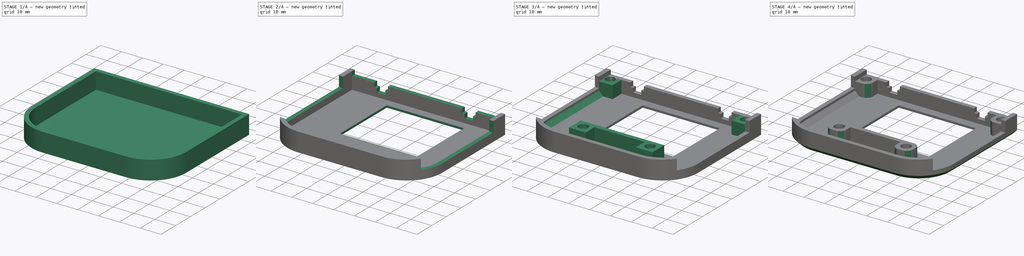
[diagram: build sequence overview — one tinted view per stage of 4, left to right]
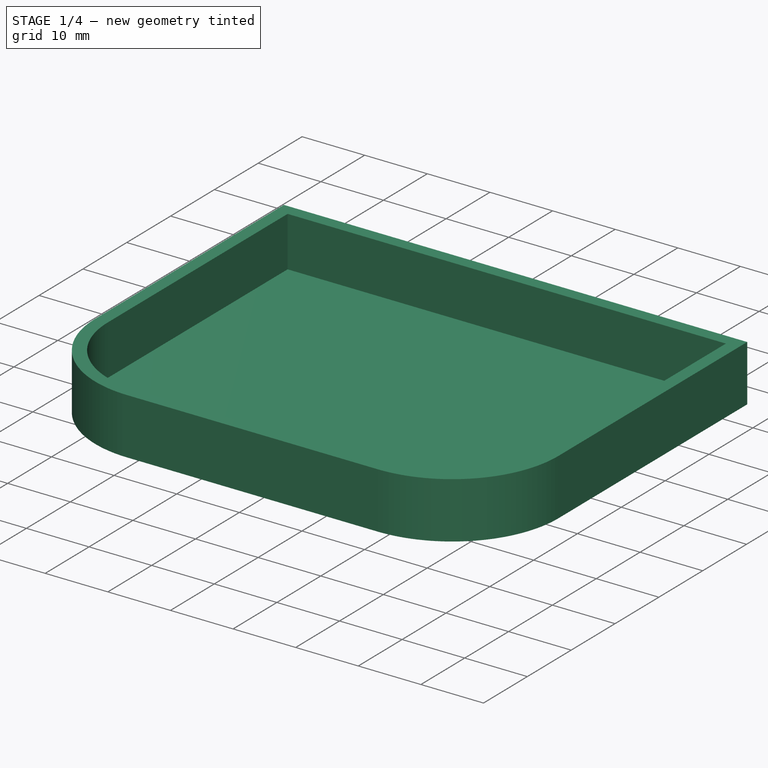
[diagram: stage 1 of 4 — iso view after this stage's code; geometry added in this stage tinted green]
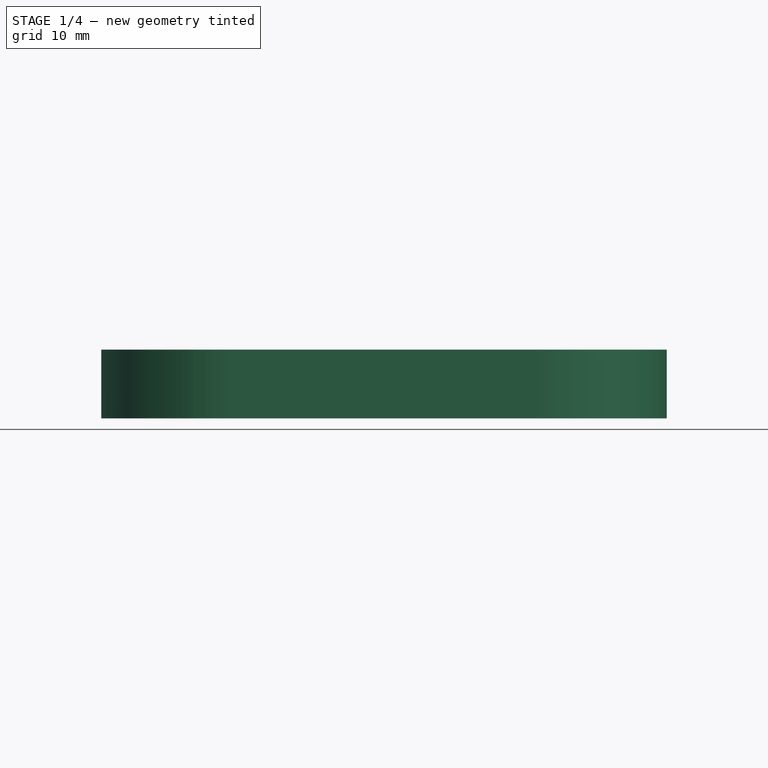
[diagram: stage 1 of 4 — front view after this stage's code; geometry added in this stage tinted green]
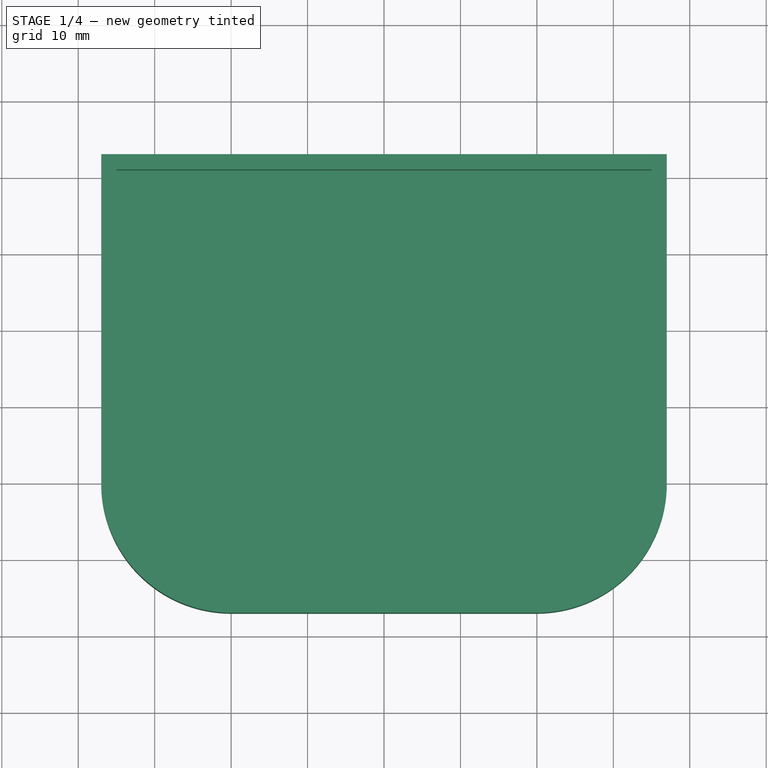
[diagram: stage 1 of 4 — top view after this stage's code; geometry added in this stage tinted green]
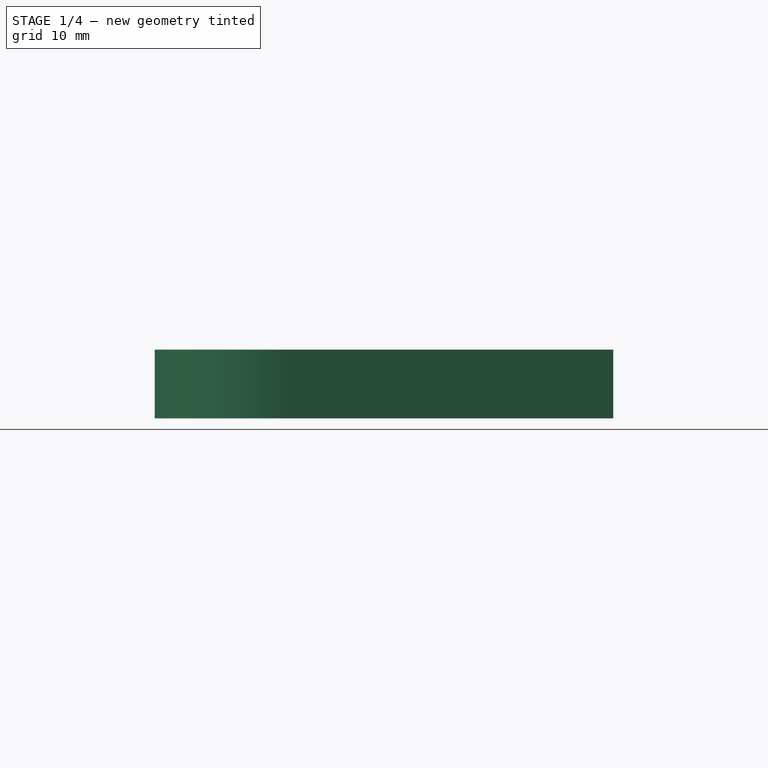
[diagram: stage 1 of 4 — right view after this stage's code; geometry added in this stage tinted green]
FCSTD DOCUMENT  (FreeCAD 0.21R33771 (Git))
Label: face
License: All rights reserved
LicenseURL: http://en.wikipedia.org/wiki/All_rights_reserved
objects: Sketcher::SketchObject×7, PartDesign::Pocket×5, PartDesign::Pad×2, PartDesign::Chamfer×2, PartDesign::Fillet×1, PartDesign::Body×1
note: 28 computed .brp shape members not serialized (recipe doc carries the construction recipe); baked Part::Feature solids carry a one-line shape summary decoded from their .brp

FEATURE [Sketcher::SketchObject] Sketch
  FullyConstrained = true
  MapMode = 5
  Support = -> [XY_Plane]
  sketch-geometry (6):
    g0: LineSegment StartX=-37 StartY=23 StartZ=0 EndX=-37 EndY=-20 EndZ=0
    g1: LineSegment StartX=-20 StartY=-37 StartZ=0 EndX=20 EndY=-37 EndZ=0
    g2: LineSegment StartX=37 StartY=-20 StartZ=0 EndX=37 EndY=23 EndZ=0
    g3: ArcOfCircle CenterX=-20 CenterY=-20 CenterZ=0 NormalX=0 NormalY=0 NormalZ=1 AngleXU=0 Radius=17 StartAngle=3.14159 EndAngle=4.71239
    g4: ArcOfCircle CenterX=20 CenterY=-20 CenterZ=0 NormalX=0 NormalY=0 NormalZ=1 AngleXU=0 Radius=17 StartAngle=4.71239 EndAngle=6.28319
    g5: LineSegment StartX=-37 StartY=23 StartZ=0 EndX=37 EndY=23 EndZ=0
  constraints (18):
    c: Vertical(g0)
    c: Horizontal(g1)
    c: Vertical(g2)
    c: Coincident(g3,g0)
    c: Coincident(g3,g1)
    c: Coincident(g4,g2)
    c: Coincident(g4,g1)
    c: Symmetric(g2,g0,g-2)
    c: Vertical(g1,g3)
    c: Horizontal(g3,g0)
    c: Symmetric(g4,g3,g-2)
    c: Horizontal(g4,g2)
    c: Radius(g3) = 17
    c: DistanceX(g0,g2) = 74
    c: DistanceY(g1,g-1) = 37
    c: DistanceY(g-1,g2) = 23
    c: Coincident(g5,g0)
    c: Coincident(g5,g2)
FEATURE [PartDesign::Pad] Pad
  Direction = (0,0,1)
  Length = 9
  Length2 = 10
  Profile = -> Sketch
  ReferenceAxis = -> Sketch [N_Axis]
  Type = 0
FEATURE [Sketcher::SketchObject] Sketch001
  FullyConstrained = true
  MapMode = 5
  Placement = pos=(0,0,9) rot=(0,0,1;0rad)
  Support = -> [Pad]
  sketch-geometry (6):
    g0: LineSegment StartX=-35 StartY=21 StartZ=0 EndX=-35 EndY=-20 EndZ=0
    g1: LineSegment StartX=35 StartY=21 StartZ=0 EndX=35 EndY=-20 EndZ=0
    g2: LineSegment StartX=-20 StartY=-35 StartZ=0 EndX=20 EndY=-35 EndZ=0
    g3: ArcOfCircle CenterX=-20 CenterY=-20 CenterZ=0 NormalX=0 NormalY=0 NormalZ=1 AngleXU=0 Radius=15 StartAngle=3.14159 EndAngle=4.71239
    g4: ArcOfCircle CenterX=20 CenterY=-20 CenterZ=0 NormalX=0 NormalY=0 NormalZ=1 AngleXU=0 Radius=15 StartAngle=4.71239 EndAngle=6.28319
    g5: LineSegment StartX=-35 StartY=21 StartZ=0 EndX=35 EndY=21 EndZ=0
  constraints (18):
    c: Vertical(g0)
    c: Vertical(g1)
    c: Horizontal(g2)
    c: Coincident(g3,g0)
    c: Coincident(g3,g2)
    c: Coincident(g4,g1)
    c: Coincident(g4,g2)
    c: DistanceY(g2,g-1) = 35
    c: DistanceX(g0,g1) = 70
    c: Symmetric(g1,g0,g-2)
    c: Coincident(g5,g0)
    c: Coincident(g5,g1)
    c: Symmetric(g4,g3,g-2)
    c: Horizontal(g0,g3)
    c: Horizontal(g4,g1)
    c: Vertical(g2,g3)
    c: Radius(g3) = 15
    c: DistanceY(g-1,g1) = 21
FEATURE [PartDesign::Pocket] Pocket
  BaseFeature = -> Pad
  Direction = (0,0,-1)
  Length = 8
  Length2 = 5
  Profile = -> Sketch001
  ReferenceAxis = -> Sketch001 [N_Axis]
  Type = 0
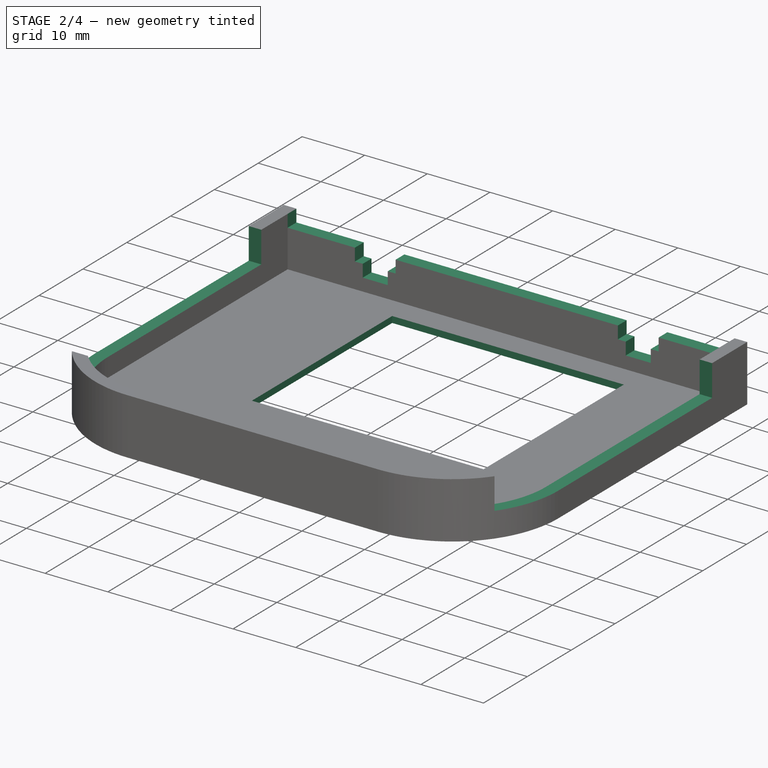
[diagram: stage 2 of 4 — iso view after this stage's code; geometry added in this stage tinted green]
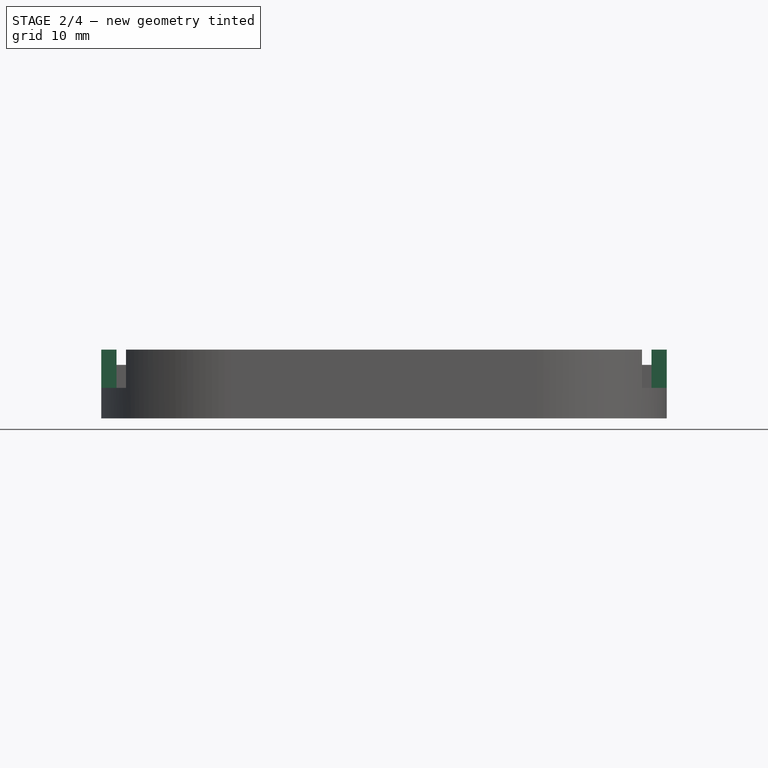
[diagram: stage 2 of 4 — front view after this stage's code; geometry added in this stage tinted green]
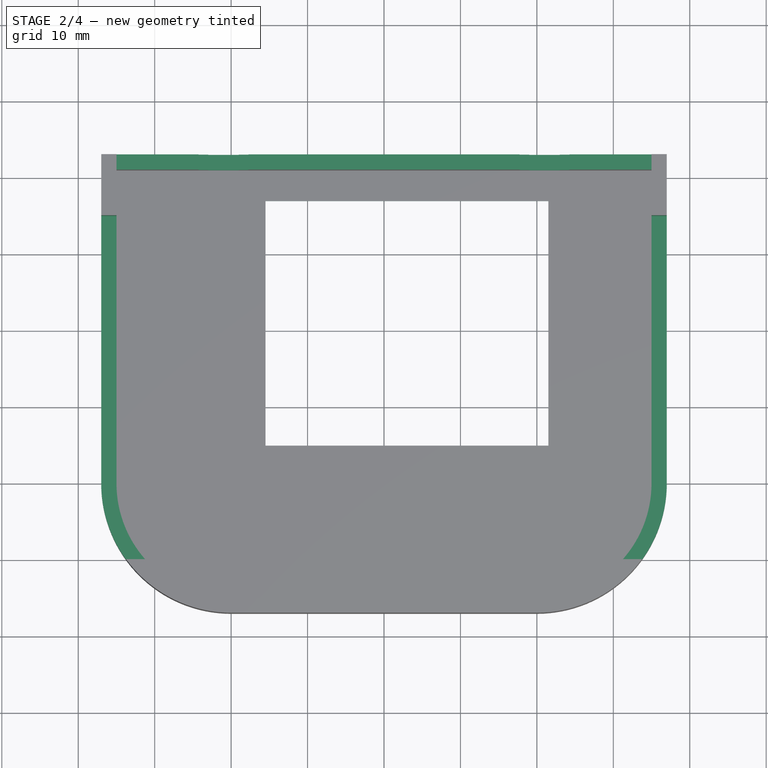
[diagram: stage 2 of 4 — top view after this stage's code; geometry added in this stage tinted green]
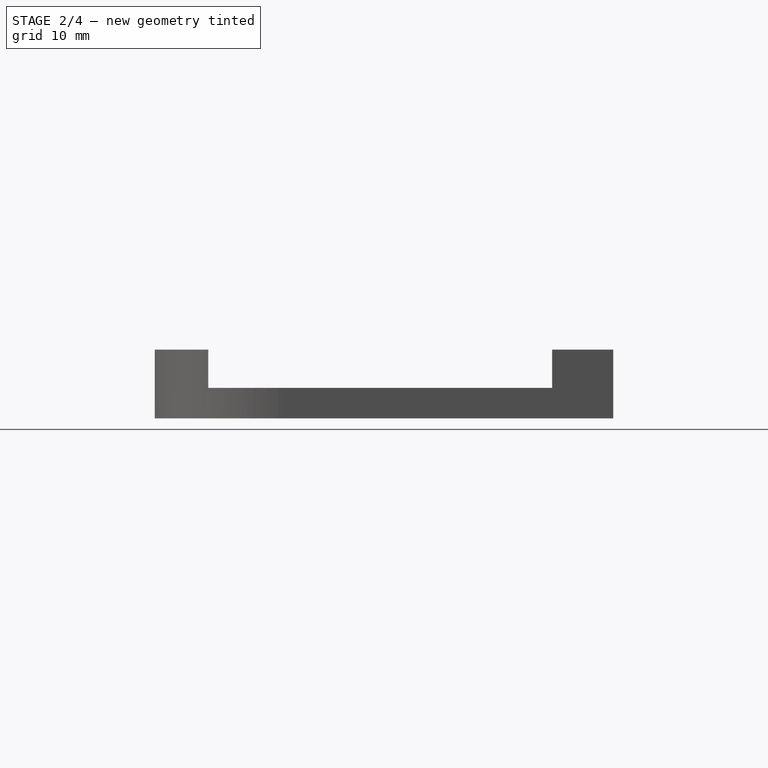
[diagram: stage 2 of 4 — right view after this stage's code; geometry added in this stage tinted green]
FEATURE [Sketcher::SketchObject] Sketch002
  FullyConstrained = true
  MapMode = 5
  Placement = pos=(0,0,1) rot=(0,0,1;0rad)
  Support = -> [Pocket]
  sketch-geometry (4):
    g0: LineSegment StartX=-15.5 StartY=17 StartZ=0 EndX=21.5 EndY=17 EndZ=0
    g1: LineSegment StartX=21.5 StartY=17 StartZ=0 EndX=21.5 EndY=-15 EndZ=0
    g2: LineSegment StartX=21.5 StartY=-15 StartZ=0 EndX=-15.5 EndY=-15 EndZ=0
    g3: LineSegment StartX=-15.5 StartY=-15 StartZ=0 EndX=-15.5 EndY=17 EndZ=0
  constraints (12):
    c: Coincident(g0,g1)
    c: Coincident(g1,g2)
    c: Coincident(g2,g3)
    c: Coincident(g3,g0)
    c: Horizontal(g2)
    c: Vertical(g3)
    c: DistanceY(g3,g3) = 32
    c: DistanceX(g2,g2) = 37
    c: DistanceX(g-1,g1) = 21.5
    c: Horizontal(g0)
    c: DistanceY(g1,g-1) = 15
    c: Vertical(g1)
FEATURE [PartDesign::Pocket] Pocket001
  BaseFeature = -> Pocket
  Direction = (0,0,-1)
  Length = 5
  Length2 = 5
  Profile = -> Sketch002
  ReferenceAxis = -> Sketch002 [N_Axis]
  Type = 1
FEATURE [Sketcher::SketchObject] Sketch003
  FullyConstrained = true
  MapMode = 5
  Placement = pos=(0,23,0) rot=(0,0.707107,0.707107;3.14159rad)
  Support = -> [Pocket001]
  sketch-geometry (20):
    g0: LineSegment StartX=-35 StartY=9 StartZ=0 EndX=35 EndY=9 EndZ=0
    g1: LineSegment StartX=35 StartY=9 StartZ=0 EndX=35 EndY=7 EndZ=0
    g2: LineSegment StartX=35 StartY=7 StartZ=0 EndX=24.25 EndY=7 EndZ=0
    g3: LineSegment StartX=24.25 StartY=7 StartZ=0 EndX=24.25 EndY=5 EndZ=0
    g4: LineSegment StartX=17.75 StartY=5 StartZ=0 EndX=17.75 EndY=7 EndZ=0
    g5: LineSegment StartX=17.75 StartY=7 StartZ=0 EndX=-17.75 EndY=7 EndZ=0
    g6: LineSegment StartX=-17.75 StartY=7 StartZ=0 EndX=-17.75 EndY=5 EndZ=0
    g7: LineSegment StartX=-24.25 StartY=5 StartZ=0 EndX=-24.25 EndY=7 EndZ=0
    g8: LineSegment StartX=-24.25 StartY=7 StartZ=0 EndX=-35 EndY=7 EndZ=0
    g9: LineSegment StartX=-35 StartY=7 StartZ=0 EndX=-35 EndY=9 EndZ=0
    g10: LineSegment StartX=-24.25 StartY=5 StartZ=0 EndX=-23 EndY=5 EndZ=0
    g11: LineSegment StartX=-17.75 StartY=5 StartZ=0 EndX=-19 EndY=5 EndZ=0
    g12: LineSegment StartX=-23 StartY=5 StartZ=0 EndX=-23 EndY=3 EndZ=0
    g13: LineSegment StartX=-19 StartY=5 StartZ=0 EndX=-19 EndY=3 EndZ=0
    g14: LineSegment StartX=-23 StartY=3 StartZ=0 EndX=-19 EndY=3 EndZ=0
    g15: LineSegment StartX=17.75 StartY=5 StartZ=0 EndX=19 EndY=5 EndZ=0
    g16: LineSegment StartX=24.25 StartY=5 StartZ=0 EndX=23 EndY=5 EndZ=0
    g17: LineSegment StartX=19 StartY=5 StartZ=0 EndX=19 EndY=3 EndZ=0
    g18: LineSegment StartX=19 StartY=3 StartZ=0 EndX=23 EndY=3 EndZ=0
    g19: LineSegment StartX=23 StartY=3 StartZ=0 EndX=23 EndY=5 EndZ=0
  constraints (58):
    c: Coincident(g1,g0)
    c: Vertical(g1)
    c: Coincident(g2,g1)
    c: Horizontal(g2)
    c: Coincident(g3,g2)
    c: Vertical(g3)
    c: Vertical(g4)
    c: Coincident(g5,g4)
    c: Horizontal(g5)
    c: Coincident(g6,g5)
    c: Vertical(g6)
    c: Vertical(g7)
    c: Coincident(g8,g7)
    c: Horizontal(g8)
    c: Coincident(g9,g8)
    c: Coincident(g9,g0)
    c: Vertical(g9)
    c: DistanceX(g0,g0) = 70
    c: Symmetric(g0,g0,g-2)
    c: DistanceY(g9,g9) = 2
    c: DistanceY(g-1,g0) = 9
    c: Symmetric(g7,g2,g-2)
    c: Horizontal(g4,g2)
    c: DistanceX(g7,g6) = 6.5
    c: DistanceX(g5,g5) = 35.5
    c: DistanceY(g7,g7) = 2
    c: Horizontal(g6,g4)
    c: Coincident(g10,g7)
    c: Horizontal(g10)
    c: Coincident(g11,g6)
    c: Horizontal(g11)
    c: Coincident(g12,g10)
    c: Vertical(g12)
    c: Coincident(g13,g11)
    c: Vertical(g13)
    c: Coincident(g14,g12)
    c: Coincident(g14,g13)
    c: Horizontal(g14)
    c: Coincident(g15,g4)
    c: Horizontal(g15)
    c: Coincident(g16,g3)
    c: Horizontal(g16)
    c: Coincident(g17,g15)
    c: Vertical(g17)
    c: Coincident(g18,g17)
    c: Horizontal(g18)
    c: Coincident(g19,g18)
    c: Coincident(g19,g16)
    c: Vertical(g19)
    c: DistanceX(g18,g18) = 4
    c: Equal(g18,g14)
    c: DistanceY(g17,g17) = 2
    c: Horizontal(g13,g17)
    c: Horizontal(g11,g10)
    c: Horizontal(g16,g15)
    c: Equal(g15,g16)
    c: Equal(g11,g10)
    c: DistanceX(g4,g2) = 6.5
FEATURE [PartDesign::Pocket] Pocket002
  BaseFeature = -> Pocket001
  Direction = (0,-1,2e-16)
  Length = 5
  Length2 = 5
  Profile = -> Sketch003
  ReferenceAxis = -> Sketch003 [N_Axis]
  Type = 0
FEATURE [Sketcher::SketchObject] Sketch004
  FullyConstrained = true
  MapMode = 5
  Placement = pos=(37,0,0) rot=(0.57735,0.57735,0.57735;2.0944rad)
  sketch-geometry (4):
    g0: LineSegment StartX=-30 StartY=9 StartZ=0 EndX=15 EndY=9 EndZ=0
    g1: LineSegment StartX=15 StartY=9 StartZ=0 EndX=15 EndY=4 EndZ=0
    g2: LineSegment StartX=15 StartY=4 StartZ=0 EndX=-30 EndY=4 EndZ=0
    g3: LineSegment StartX=-30 StartY=4 StartZ=0 EndX=-30 EndY=9 EndZ=0
  constraints (12):
    c: Coincident(g0,g1)
    c: Coincident(g1,g2)
    c: Coincident(g2,g3)
    c: Coincident(g3,g0)
    c: Horizontal(g0)
    c: Horizontal(g2)
    c: Vertical(g1)
    c: Vertical(g3)
    c: DistanceY(g-1,g0) = 9
    c: DistanceY(g1,g1) = 5
    c: DistanceX(g-1,g0) = 15
    c: DistanceX(g0,g-1) = 30
FEATURE [PartDesign::Pocket] Pocket003
  BaseFeature = -> Pocket002
  Direction = (-1,0,0)
  Length = 5
  Length2 = 5
  Profile = -> Sketch004
  ReferenceAxis = -> Sketch004 [N_Axis]
  Type = 1
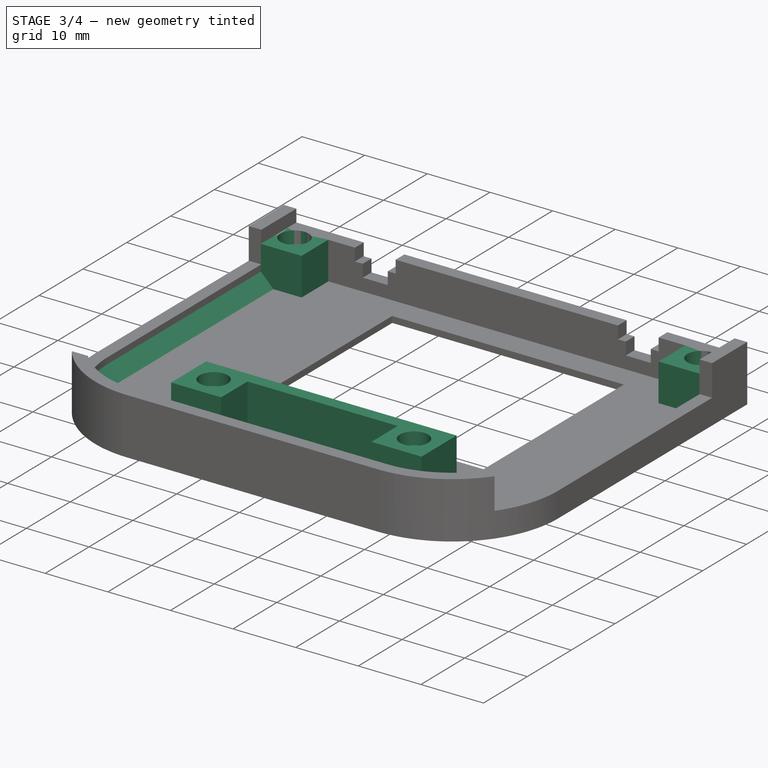
[diagram: stage 3 of 4 — iso view after this stage's code; geometry added in this stage tinted green]
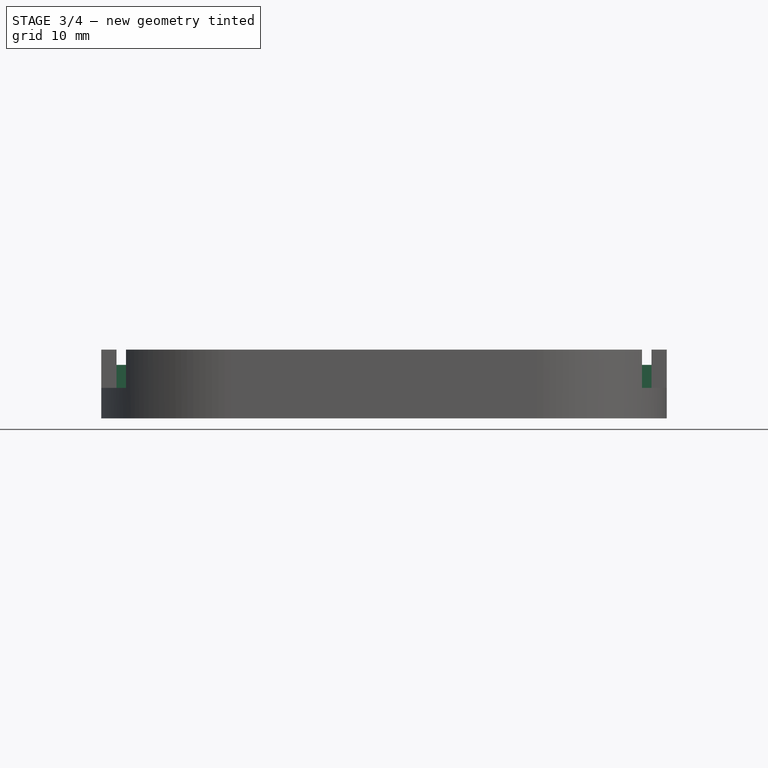
[diagram: stage 3 of 4 — front view after this stage's code; geometry added in this stage tinted green]
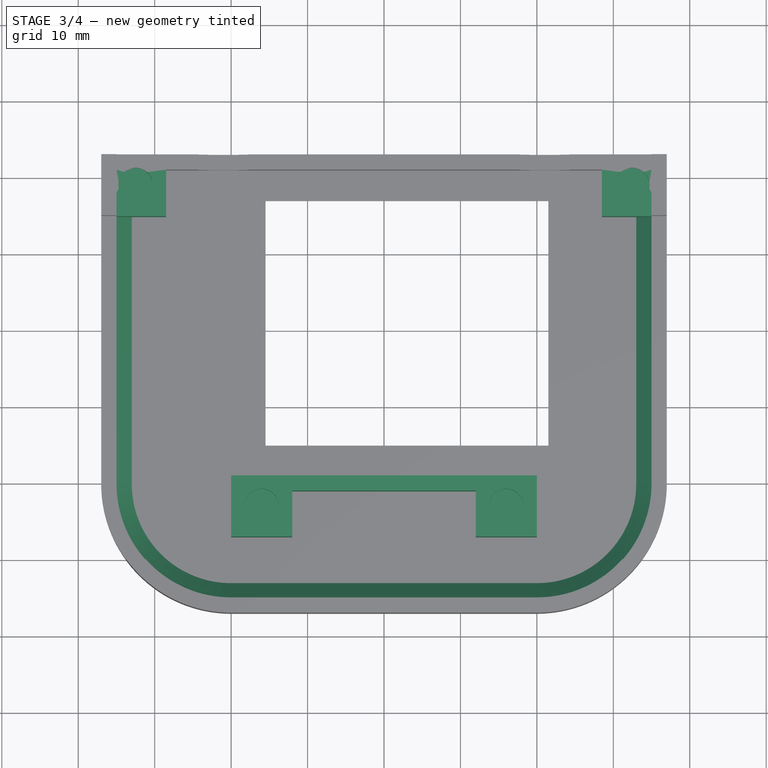
[diagram: stage 3 of 4 — top view after this stage's code; geometry added in this stage tinted green]
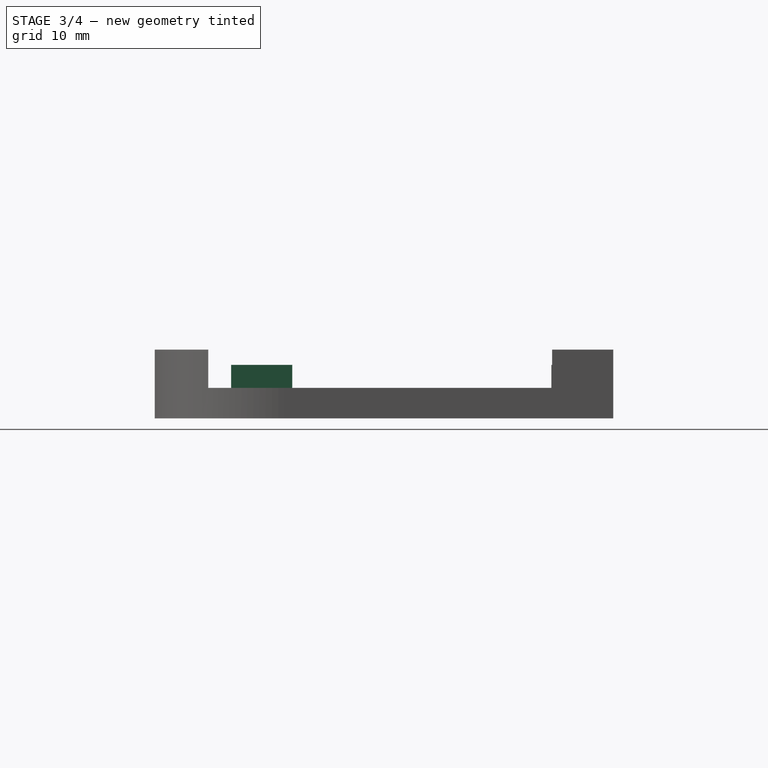
[diagram: stage 3 of 4 — right view after this stage's code; geometry added in this stage tinted green]
FEATURE [Sketcher::SketchObject] Sketch005
  FullyConstrained = true
  MapMode = 5
  Placement = pos=(0,0,1) rot=(0,0,1;0rad)
  Support = -> [Pocket003]
  sketch-geometry (16):
    g0: LineSegment StartX=-20 StartY=-19 StartZ=0 EndX=20 EndY=-19 EndZ=0
    g1: LineSegment StartX=20 StartY=-19 StartZ=0 EndX=20 EndY=-27 EndZ=0
    g2: LineSegment StartX=-20 StartY=-27 StartZ=0 EndX=-20 EndY=-19 EndZ=0
    g3: LineSegment StartX=-20 StartY=-27 StartZ=0 EndX=-12 EndY=-27 EndZ=0
    g4: LineSegment StartX=-12 StartY=-27 StartZ=0 EndX=-12 EndY=-21 EndZ=0
    g5: LineSegment StartX=-12 StartY=-21 StartZ=0 EndX=12 EndY=-21 EndZ=0
    g6: LineSegment StartX=12 StartY=-21 StartZ=0 EndX=12 EndY=-27 EndZ=0
    g7: LineSegment StartX=12 StartY=-27 StartZ=0 EndX=20 EndY=-27 EndZ=0
    g8: LineSegment StartX=-35 StartY=22.9 StartZ=0 EndX=-28.5 EndY=22.9 EndZ=0
    g9: LineSegment StartX=-28.5 StartY=22.9 StartZ=0 EndX=-28.5 EndY=14.9 EndZ=0
    g10: LineSegment StartX=-35 StartY=14.9 StartZ=0 EndX=-35 EndY=22.9 EndZ=0
    g11: LineSegment StartX=28.5 StartY=22.9 StartZ=0 EndX=35 EndY=22.9 EndZ=0
    g12: LineSegment StartX=35 StartY=22.9 StartZ=0 EndX=35 EndY=14.9 EndZ=0
    g13: LineSegment StartX=35 StartY=14.9 StartZ=0 EndX=28.5 EndY=14.9 EndZ=0
    g14: LineSegment StartX=28.5 StartY=14.9 StartZ=0 EndX=28.5 EndY=22.9 EndZ=0
    g15: LineSegment StartX=-28.5 StartY=14.9 StartZ=0 EndX=-35 EndY=14.9 EndZ=0
  constraints (46):
    c: Coincident(g0,g1)
    c: Coincident(g2,g0)
    c: Vertical(g1)
    c: Vertical(g2)
    c: DistanceY(g2,g2) = 8
    c: Symmetric(g0,g0,g-2)
    c: DistanceX(g0,g0) = 40
    c: DistanceY(g0,g-1) = 19
    c: Coincident(g3,g2)
    c: Horizontal(g3)
    c: Coincident(g4,g3)
    c: Vertical(g4)
    c: Coincident(g5,g4)
    c: Horizontal(g5)
    c: Coincident(g6,g5)
    c: Vertical(g6)
    c: Coincident(g7,g6)
    c: Coincident(g7,g1)
    c: Horizontal(g7)
    c: DistanceX(g3,g3) = 8
    c: Equal(g3,g7)
    c: Horizontal(g3,g6)
    c: DistanceY(g5,g0) = 2
    c: Coincident(g8,g9)
    c: Coincident(g10,g8)
    c: Horizontal(g8)
    c: Vertical(g9)
    c: Vertical(g10)
    c: DistanceX(g10,g9) = 6.5
    c: DistanceY(g9,g9) = 8
    c: Coincident(g11,g12)
    c: Coincident(g12,g13)
    c: Coincident(g13,g14)
    c: Coincident(g14,g11)
    c: Horizontal(g11)
    c: Horizontal(g13)
    c: Vertical(g12)
    c: Vertical(g14)
    c: DistanceY(g14,g14) = 8
    c: Symmetric(g9,g13,g-2)
    c: DistanceY(g-1,g9) = 14.9
    c: DistanceX(g9,g-1) = 28.5
    c: Coincident(g15,g9)
    c: Coincident(g15,g10)
    c: Horizontal(g15)
    c: Equal(g15,g13)
FEATURE [PartDesign::Pad] Pad001
  BaseFeature = -> Pocket003
  Direction = (0,0,1)
  Length = 6
  Length2 = 10
  Profile = -> Sketch005
  ReferenceAxis = -> Sketch005 [N_Axis]
  Type = 0
FEATURE [Sketcher::SketchObject] Sketch006
  FullyConstrained = true
  MapMode = 5
  Placement = pos=(0,0,7) rot=(0,0,1;0rad)
  Support = -> [Pad001]
  sketch-geometry (4):
    g0: Circle CenterX=-16 CenterY=-23 CenterZ=0 NormalX=0 NormalY=0 NormalZ=1 AngleXU=0 Radius=2.25
    g1: Circle CenterX=16 CenterY=-23 CenterZ=0 NormalX=0 NormalY=0 NormalZ=1 AngleXU=0 Radius=2.25
    g2: Circle CenterX=-32.5 CenterY=19 CenterZ=0 NormalX=0 NormalY=0 NormalZ=1 AngleXU=0 Radius=2.25
    g3: Circle CenterX=32.5 CenterY=19 CenterZ=0 NormalX=0 NormalY=0 NormalZ=1 AngleXU=0 Radius=2.25
  constraints (10):
    c: Equal(g1,g0)
    c: Diameter(g1) = 4.5
    c: Symmetric(g0,g1,g-2)
    c: DistanceX(g0,g-1) = 16
    c: DistanceY(g0,g-1) = 23
    c: Equal(g0,g2)
    c: Equal(g2,g3)
    c: Symmetric(g3,g2,g-2)
    c: DistanceY(g-1,g2) = 19
    c: DistanceX(g2,g-1) = 32.5
FEATURE [PartDesign::Pocket] Pocket004
  BaseFeature = -> Pad001
  Direction = (0,0,-1)
  Length = 2
  Length2 = 5
  Profile = -> Sketch006
  ReferenceAxis = -> Sketch006 [N_Axis]
  Type = 0
FEATURE [PartDesign::Chamfer] Chamfer
  Angle = 45
  Base = -> Pocket004 [Edge78]
  BaseFeature = -> Pocket004
  ChamferType = 0
  FlipDirection = false
  Size = 2
  Size2 = 1
  SupportTransform = false
  UseAllEdges = false
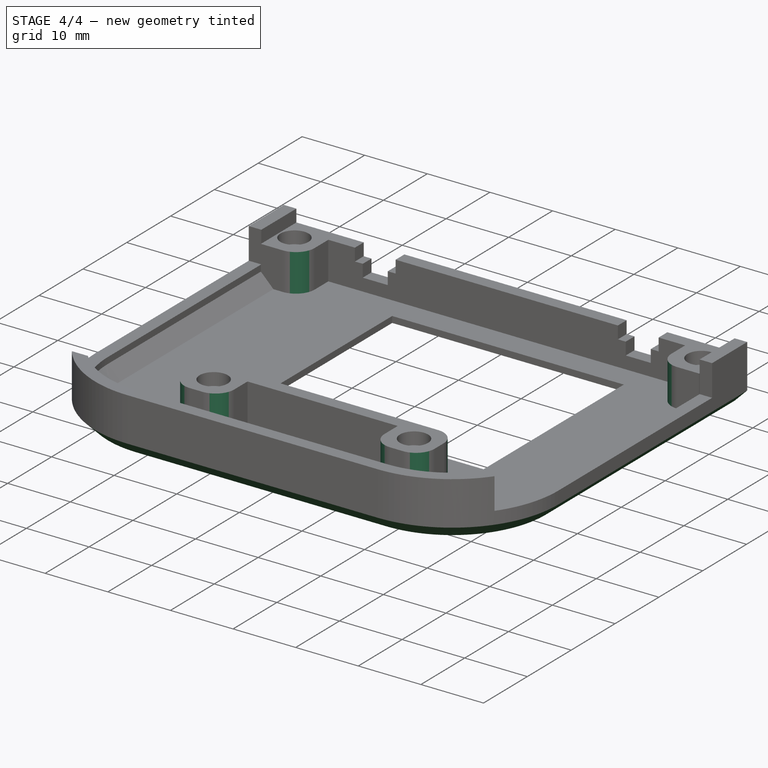
[diagram: stage 4 of 4 — iso view after this stage's code; geometry added in this stage tinted green]
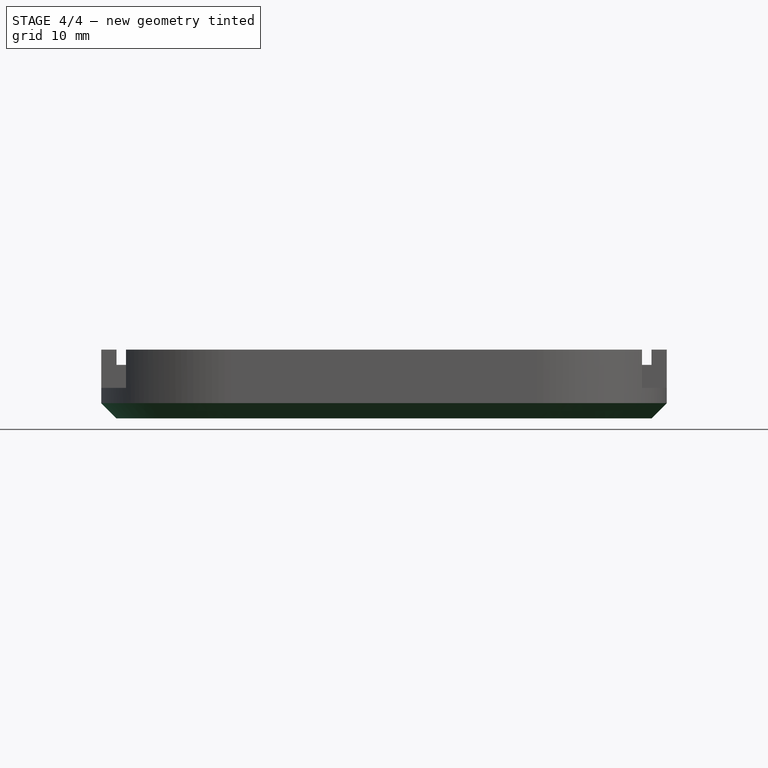
[diagram: stage 4 of 4 — front view after this stage's code; geometry added in this stage tinted green]
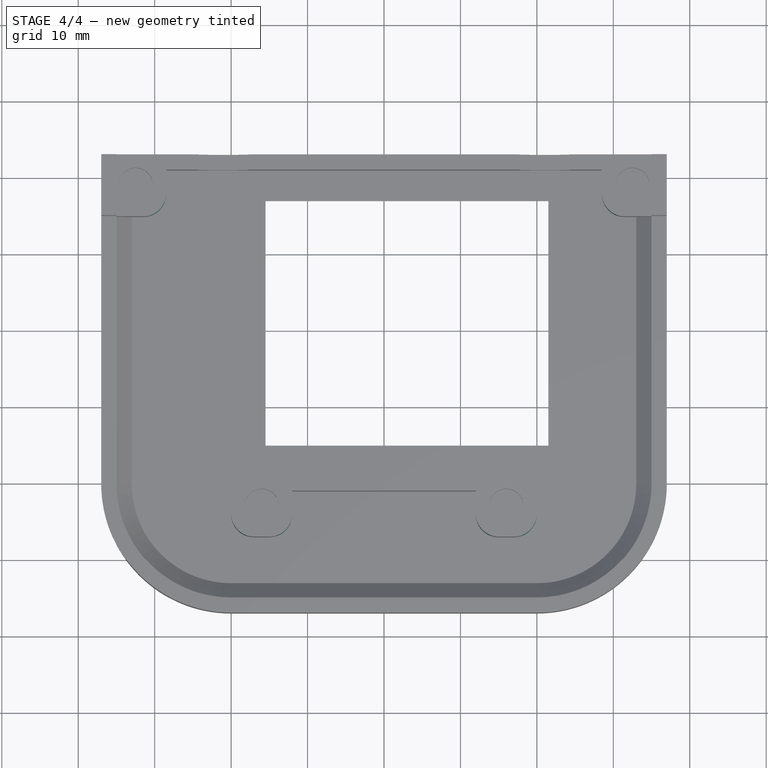
[diagram: stage 4 of 4 — top view after this stage's code; geometry added in this stage tinted green]
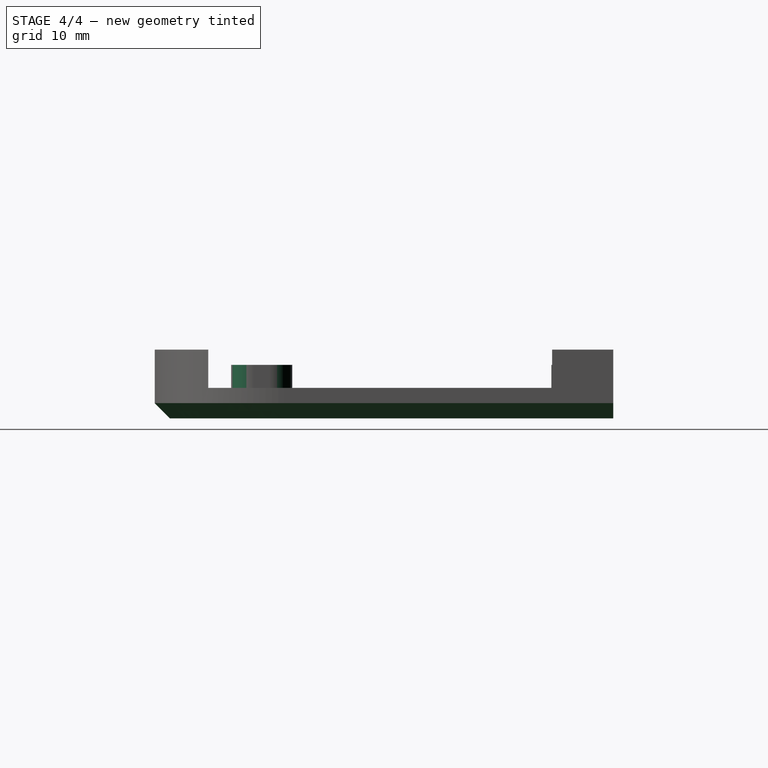
[diagram: stage 4 of 4 — right view after this stage's code; geometry added in this stage tinted green]
FEATURE [PartDesign::Chamfer] Chamfer001
  Angle = 45
  Base = -> Chamfer [Edge137]
  BaseFeature = -> Chamfer
  ChamferType = 0
  FlipDirection = false
  Size = 2
  Size2 = 1
  SupportTransform = false
  UseAllEdges = false
FEATURE [PartDesign::Fillet] Fillet
  Base = -> Chamfer001 [Edge166,Edge192,Edge218,Edge216,Edge210,Edge207,Edge208,Edge220]
  BaseFeature = -> Chamfer001
  Radius = 3
  SupportTransform = false
  UseAllEdges = false
FEATURE [PartDesign::Body] Body
  Group = -> [Sketch,Pad,Sketch001,Pocket,Sketch002,Pocket001,Sketch003,Pocket002,Sketch004,Pocket003,Sketch005,Pad001,Sketch006,Pocket004,Chamfer,Chamfer001,Fillet]
  Origin = -> Origin
  Tip = -> Fillet
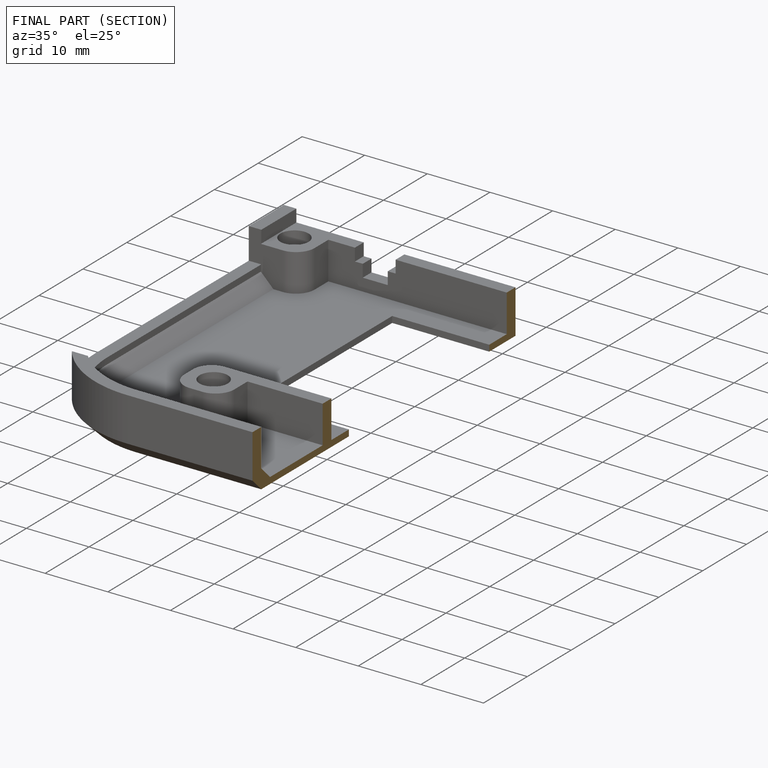
[diagram: finished part — half-section view (interior)]
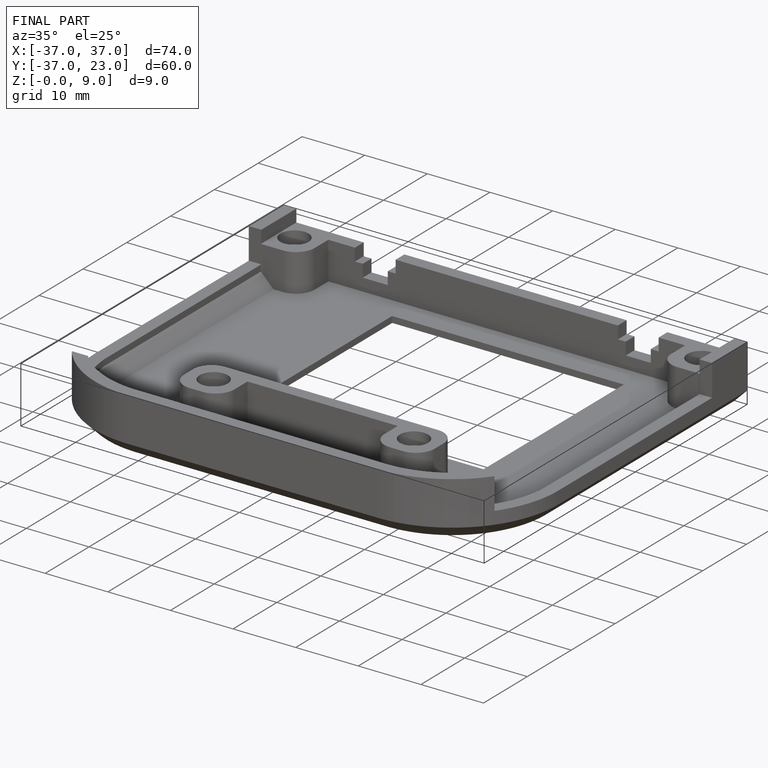
[diagram: finished part — iso view with bounding-box wireframe]
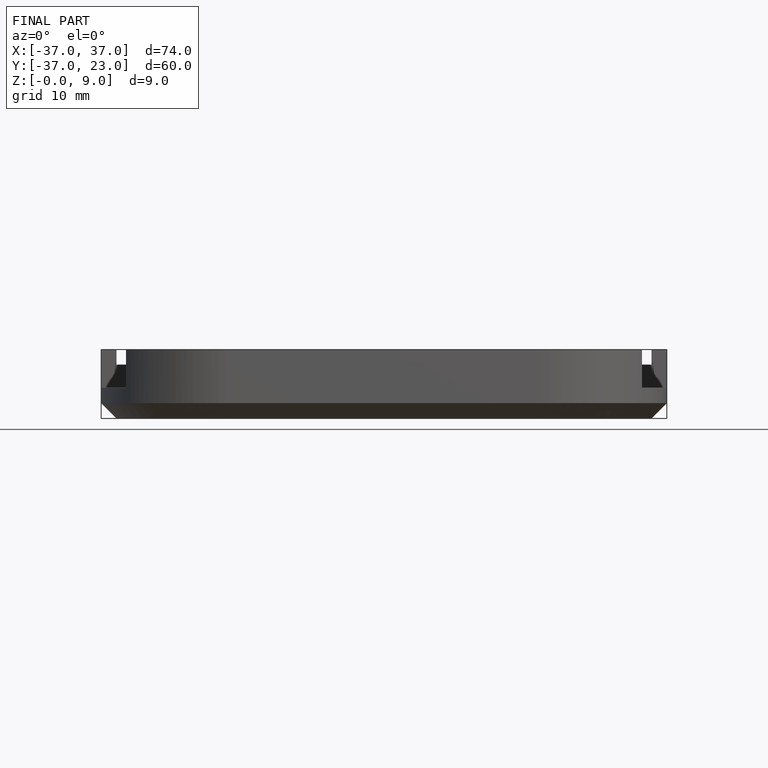
[diagram: finished part — front view with bounding-box wireframe]
